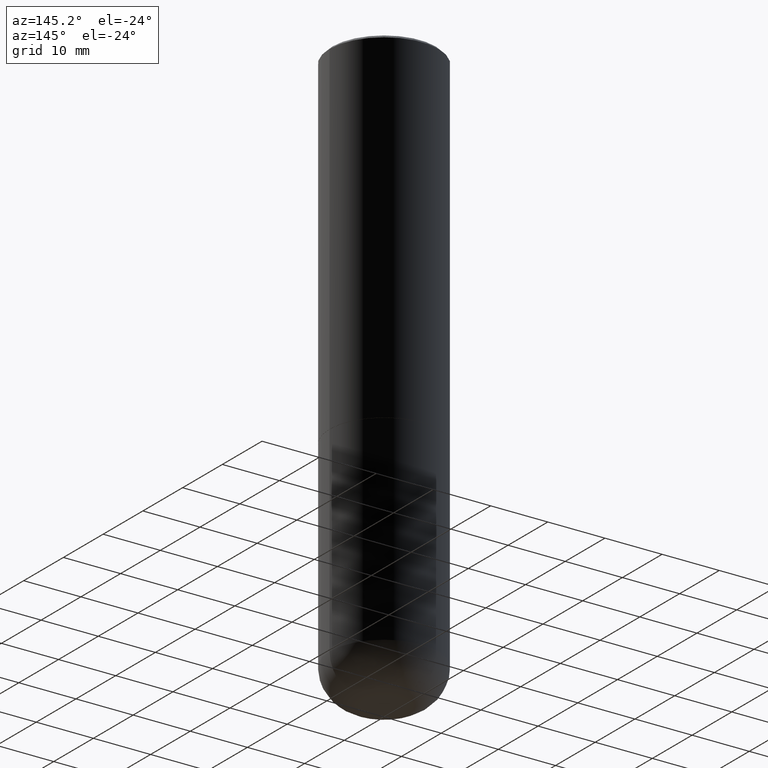
[diagram: clean part render]
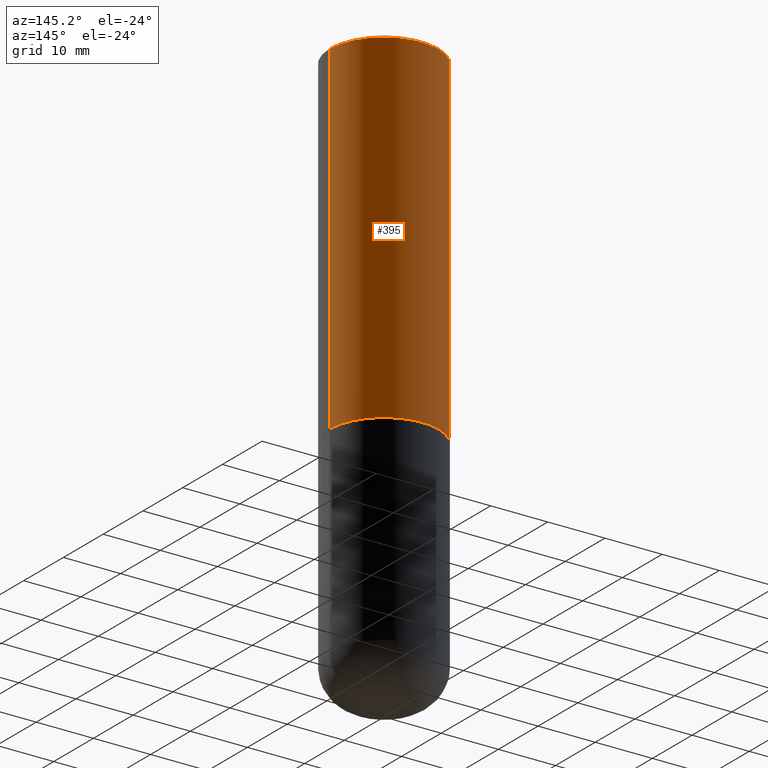
[diagram: same view with one face highlighted and labeled with its STEP entity id]
A machine part, auxiliary view. The second image highlights one B-rep face of the part: STEP entity #395.
In plain terms, the highlighted cylindrical surface (partial cylindrical patch) has radius 9.525 mm, axis along (-0, 0, 1).
Its self-contained STEP definition (entity closure, byte-faithful):
#36 = VECTOR ( 'NONE', #252, 39.37007874015748143 ) ;
#39 = CARTESIAN_POINT ( 'NONE',  ( 0.000000000000000000, 0.000000000000000000, 0.000000000000000000 ) ) ;
#56 = DIRECTION ( 'NONE',  ( -2.445468806185136877E-29, 3.491481338843145188E-15, 1.000000000000000000 ) ) ;
#78 = CARTESIAN_POINT ( 'NONE',  ( 5.805542945883513814E-29, -8.288776698413627111E-15, -2.373999999999999666 ) ) ;
#80 = EDGE_LOOP ( 'NONE', ( #225, #419, #182, #374 ) ) ;
#88 = CARTESIAN_POINT ( 'NONE',  ( -0.3749999999999991673, 2.548781377355480407E-15, -0.02000000000000022246 ) ) ;
#102 = CARTESIAN_POINT ( 'NONE',  ( 4.890937612370327459E-31, -6.982962677686369262E-17, -0.02000000000000022246 ) ) ;
#103 = EDGE_CURVE ( 'NONE', #301, #343, #416, .T. ) ;
#106 = DIRECTION ( 'NONE',  ( -2.445468806185136597E-29, 3.491481338843145583E-15, 1.000000000000000000 ) ) ;
#115 = DIRECTION ( 'NONE',  ( -2.445468806185136597E-29, 3.491481338843145583E-15, 1.000000000000000000 ) ) ;
#117 = DIRECTION ( 'NONE',  ( 1.000000000000000000, -6.982962677686265133E-15, 4.876176775795935793E-29 ) ) ;
#124 = CARTESIAN_POINT ( 'NONE',  ( -0.3750000000000000555, -1.514767903494864183E-15, -2.373999999999999666 ) ) ;
#127 = CARTESIAN_POINT ( 'NONE',  ( -0.3749999999999995559, 2.664535259100372542E-15, -1.844600658845587356E-29 ) ) ;
#171 = AXIS2_PLACEMENT_3D ( 'NONE', #78, #314, #236 ) ;
#182 = ORIENTED_EDGE ( 'NONE', *, *, #103, .F. ) ;
#188 = AXIS2_PLACEMENT_3D ( 'NONE', #39, #115, #117 ) ;
#192 = EDGE_CURVE ( 'NONE', #454, #301, #260, .T. ) ;
#213 = VECTOR ( 'NONE', #56, 39.37007874015748143 ) ;
#225 = ORIENTED_EDGE ( 'NONE', *, *, #442, .T. ) ;
#227 = CARTESIAN_POINT ( 'NONE',  ( 0.3750000000000000555, -1.090738770254597870E-14, -2.373999999999999666 ) ) ;
#236 = DIRECTION ( 'NONE',  ( 1.000000000000000000, -6.982962677686266711E-15, 0.000000000000000000 ) ) ;
#252 = DIRECTION ( 'NONE',  ( -2.445468806185136877E-29, 3.491481338843145188E-15, 1.000000000000000000 ) ) ;
#260 = LINE ( 'NONE', #411, #36 ) ;
#267 = FACE_OUTER_BOUND ( 'NONE', #80, .T. ) ;
#273 = CYLINDRICAL_SURFACE ( 'NONE', #188, 0.3749999999999995559 ) ;
#287 = LINE ( 'NONE', #127, #213 ) ;
#301 = VERTEX_POINT ( 'NONE', #475 ) ;
#311 = EDGE_CURVE ( 'NONE', #490, #343, #287, .T. ) ;
#314 = DIRECTION ( 'NONE',  ( -2.445468806185136597E-29, 3.491481338843145583E-15, 1.000000000000000000 ) ) ;
#338 = AXIS2_PLACEMENT_3D ( 'NONE', #102, #106, #403 ) ;
#343 = VERTEX_POINT ( 'NONE', #88 ) ;
#347 = CIRCLE ( 'NONE', #171, 0.3750000000000000555 ) ;
#374 = ORIENTED_EDGE ( 'NONE', *, *, #192, .F. ) ;
#395 = ADVANCED_FACE ( 'NONE', ( #267 ), #273, .T. ) ;
#403 = DIRECTION ( 'NONE',  ( 1.000000000000000000, -6.982962677686266711E-15, 0.000000000000000000 ) ) ;
#411 = CARTESIAN_POINT ( 'NONE',  ( 0.3749999999999995559, -2.618611004132346467E-15, 1.828566290923473680E-29 ) ) ;
#416 = CIRCLE ( 'NONE', #338, 0.3749999999999991673 ) ;
#419 = ORIENTED_EDGE ( 'NONE', *, *, #311, .T. ) ;
#442 = EDGE_CURVE ( 'NONE', #454, #490, #347, .T. ) ;
#454 = VERTEX_POINT ( 'NONE', #227 ) ;
#475 = CARTESIAN_POINT ( 'NONE',  ( 0.3749999999999991673, -2.642516375941182112E-15, -0.02000000000000022246 ) ) ;
#490 = VERTEX_POINT ( 'NONE', #124 ) ;